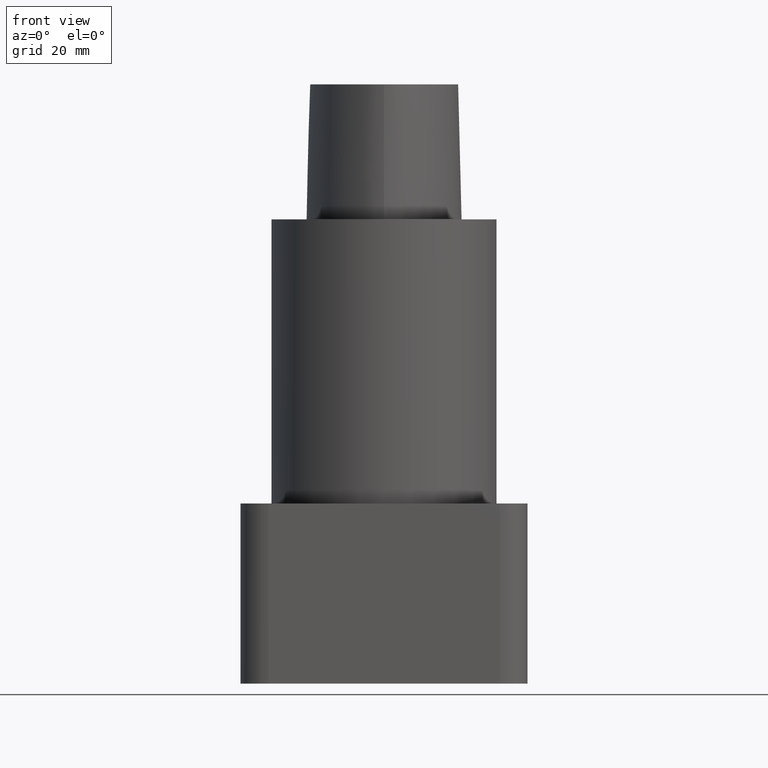
[diagram: clean part render]
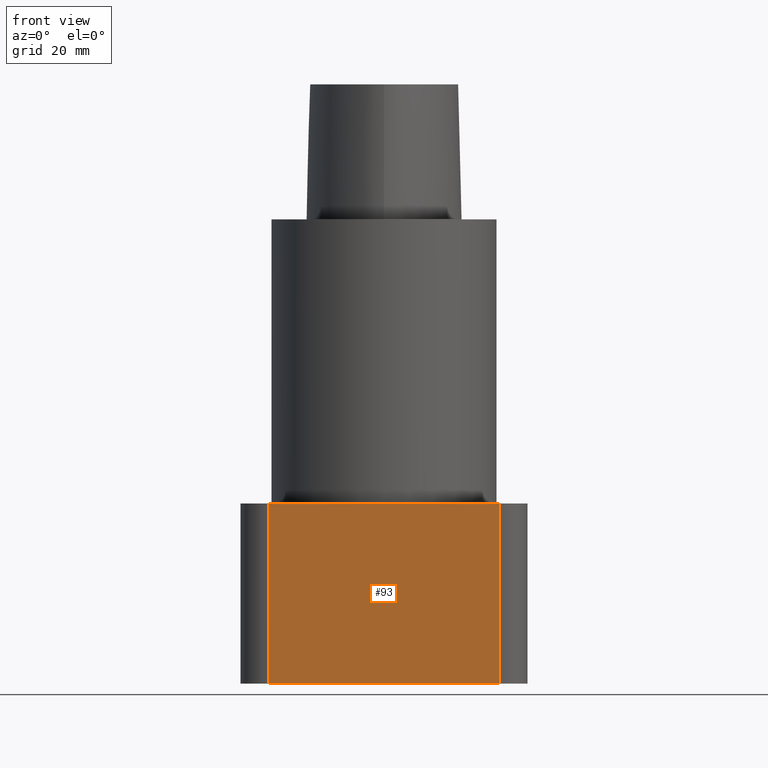
[diagram: same view with one face highlighted and labeled with its STEP entity id]
A machine part, front view. The second image highlights one B-rep face of the part: STEP entity #93.
In plain terms, the highlighted planar face has unit normal (-0, -1, 0).
Its self-contained STEP definition (entity closure, byte-faithful):
#93=ADVANCED_FACE('240[2]',(#248),#249,.T.);
#131=EDGE_CURVE('240[2]',#279,#302,#303,.T.);
#162=EDGE_CURVE('240[2]',#342,#279,#343,.T.);
#177=EDGE_CURVE('240[2]',#362,#302,#363,.T.);
#198=EDGE_CURVE('240[2]',#342,#362,#388,.T.);
#248=FACE_OUTER_BOUND('',#489,.T.);
#249=PLANE('',#490);
#279=VERTEX_POINT('',#532);
#302=VERTEX_POINT('',#568);
#303=LINE('',#569,#570);
#342=VERTEX_POINT('',#630);
#343=LINE('',#631,#632);
#362=VERTEX_POINT('',#752);
#363=LINE('',#753,#754);
#388=LINE('',#791,#792);
#489=EDGE_LOOP('',(#1203,#1204,#1205,#1206));
#490=AXIS2_PLACEMENT_3D('',#1207,#1208,#1209);
#532=CARTESIAN_POINT('',(41.0,-45.0,-101.0));
#568=CARTESIAN_POINT('',(-41.0,-45.0,-101.0));
#569=CARTESIAN_POINT('',(41.0,-45.0,-101.0));
#570=VECTOR('',#1265,1.0);
#630=CARTESIAN_POINT('',(41.0,-45.0,-165.0));
#631=CARTESIAN_POINT('',(41.0,-45.0,-165.0));
#632=VECTOR('',#1307,1.0);
#752=CARTESIAN_POINT('',(-41.0,-45.0,-165.0));
#753=CARTESIAN_POINT('',(-41.0,-45.0,-165.0));
#754=VECTOR('',#1339,1.0);
#791=CARTESIAN_POINT('',(41.0,-45.0,-165.0));
#792=VECTOR('',#1372,1.0);
#1203=ORIENTED_EDGE('',*,*,#131,.T.);
#1204=ORIENTED_EDGE('',*,*,#177,.F.);
#1205=ORIENTED_EDGE('',*,*,#198,.F.);
#1206=ORIENTED_EDGE('',*,*,#162,.T.);
#1207=CARTESIAN_POINT('',(2.61511610068887E-014,-45.0,-165.0));
#1208=DIRECTION('',(-1.83697019872103E-016,-1.0,6.12323399573677E-017));
#1209=DIRECTION('',(-1.0,1.83697019872103E-016,0.0));
#1265=DIRECTION('',(-1.0,1.83697019872103E-016,-1.22464679914735E-016));
#1307=DIRECTION('',(-1.22464679914735E-016,6.12323399573677E-017,1.0));
#1339=DIRECTION('',(-1.22464679914735E-016,6.12323399573677E-017,1.0));
#1372=DIRECTION('',(-1.0,1.83697019872103E-016,-1.22464679914735E-016));